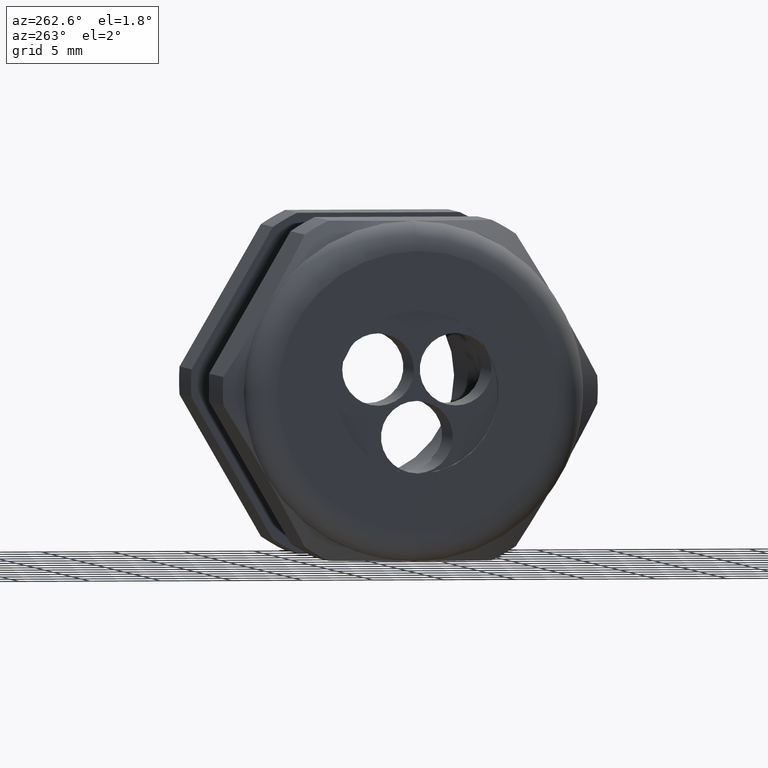
[diagram: clean part render]
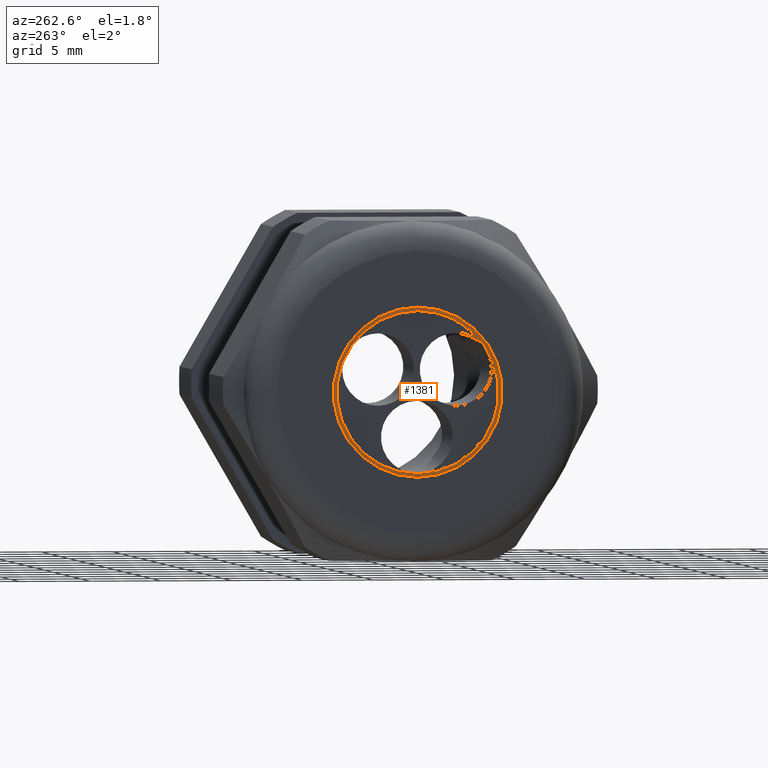
[diagram: same view with one face highlighted and labeled with its STEP entity id]
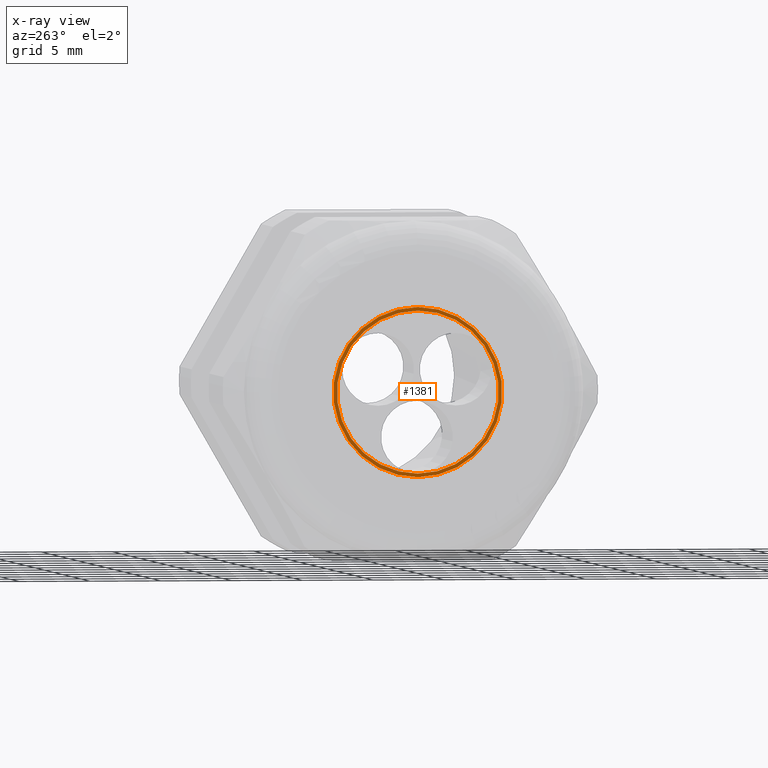
[diagram: x-ray of the same camera — body ghosted, the highlighted face saturated]
A machine part, auxiliary view. The second image highlights one B-rep face of the part: STEP entity #1381.
The next image is the same camera in x-ray: the body ghosted, the highlighted face saturated — about 0% of this face is hidden behind the body in this view.
In plain terms, the highlighted planar face has unit normal (-1, 0, 0).
Its self-contained STEP definition (entity closure, byte-faithful):
#1215 = ORIENTED_EDGE ( 'NONE', *, *, #1436, .F. ) ;
#1219 = EDGE_LOOP ( 'NONE', ( #1220, #1292 ) ) ;
#1220 = ORIENTED_EDGE ( 'NONE', *, *, #1490, .T. ) ;
#1292 = ORIENTED_EDGE ( 'NONE', *, *, #1421, .T. ) ;
#1381 = ADVANCED_FACE ( 'NONE', ( #4335, #4334 ), #4340, .T. ) ;
#1382 = EDGE_LOOP ( 'NONE', ( #1383, #1215 ) ) ;
#1383 = ORIENTED_EDGE ( 'NONE', *, *, #1384, .F. ) ;
#1384 = EDGE_CURVE ( 'NONE', #1437, #1434, #4329, .T. ) ;
#1411 = VERTEX_POINT ( 'NONE', #4347 ) ;
#1421 = EDGE_CURVE ( 'NONE', #1488, #1411, #4393, .T. ) ;
#1434 = VERTEX_POINT ( 'NONE', #4429 ) ;
#1436 = EDGE_CURVE ( 'NONE', #1434, #1437, #4428, .T. ) ;
#1437 = VERTEX_POINT ( 'NONE', #4423 ) ;
#1488 = VERTEX_POINT ( 'NONE', #4515 ) ;
#1490 = EDGE_CURVE ( 'NONE', #1411, #1488, #4513, .T. ) ;
#4325 = DIRECTION ( 'NONE',  ( 0.0000000000000000000, 0.0000000000000000000, 1.000000000000000000 ) ) ;
#4326 = DIRECTION ( 'NONE',  ( -1.000000000000000000, 0.0000000000000000000, 0.0000000000000000000 ) ) ;
#4327 = CARTESIAN_POINT ( 'NONE',  ( -1.409999999999999900, 0.0000000000000000000, 0.0000000000000000000 ) ) ;
#4328 = AXIS2_PLACEMENT_3D ( 'NONE', #4327, #4326, #4325 ) ;
#4329 = CIRCLE ( 'NONE', #4328, 0.2249999999999999800 ) ;
#4330 = DIRECTION ( 'NONE',  ( 0.0000000000000000000, 0.0000000000000000000, 1.000000000000000000 ) ) ;
#4331 = DIRECTION ( 'NONE',  ( -1.000000000000000000, 0.0000000000000000000, 0.0000000000000000000 ) ) ;
#4332 = CARTESIAN_POINT ( 'NONE',  ( -1.409999999999999900, 0.0000000000000000000, 0.0000000000000000000 ) ) ;
#4333 = AXIS2_PLACEMENT_3D ( 'NONE', #4332, #4331, #4330 ) ;
#4334 = FACE_OUTER_BOUND ( 'NONE', #1219, .T. ) ;
#4335 = FACE_BOUND ( 'NONE', #1382, .T. ) ;
#4340 = PLANE ( 'NONE',  #4333 ) ;
#4347 = CARTESIAN_POINT ( 'NONE',  ( -1.409999999999999900, 0.0000000000000000000, 0.2349999999999999900 ) ) ;
#4389 = DIRECTION ( 'NONE',  ( 0.0000000000000000000, 0.0000000000000000000, 1.000000000000000000 ) ) ;
#4390 = DIRECTION ( 'NONE',  ( -1.000000000000000000, 0.0000000000000000000, 0.0000000000000000000 ) ) ;
#4391 = CARTESIAN_POINT ( 'NONE',  ( -1.409999999999999900, 0.0000000000000000000, 0.0000000000000000000 ) ) ;
#4392 = AXIS2_PLACEMENT_3D ( 'NONE', #4391, #4390, #4389 ) ;
#4393 = CIRCLE ( 'NONE', #4392, 0.2349999999999999900 ) ;
#4423 = CARTESIAN_POINT ( 'NONE',  ( -1.409999999999999900, 0.0000000000000000000, 0.2249999999999999800 ) ) ;
#4424 = DIRECTION ( 'NONE',  ( 0.0000000000000000000, 0.0000000000000000000, 1.000000000000000000 ) ) ;
#4425 = DIRECTION ( 'NONE',  ( -1.000000000000000000, 0.0000000000000000000, 0.0000000000000000000 ) ) ;
#4426 = CARTESIAN_POINT ( 'NONE',  ( -1.409999999999999900, 0.0000000000000000000, 0.0000000000000000000 ) ) ;
#4427 = AXIS2_PLACEMENT_3D ( 'NONE', #4426, #4425, #4424 ) ;
#4428 = CIRCLE ( 'NONE', #4427, 0.2249999999999999800 ) ;
#4429 = CARTESIAN_POINT ( 'NONE',  ( -1.409999999999999900, 2.755455298081544500E-017, -0.2249999999999999800 ) ) ;
#4509 = DIRECTION ( 'NONE',  ( 0.0000000000000000000, 0.0000000000000000000, 1.000000000000000000 ) ) ;
#4510 = DIRECTION ( 'NONE',  ( -1.000000000000000000, 0.0000000000000000000, 0.0000000000000000000 ) ) ;
#4511 = CARTESIAN_POINT ( 'NONE',  ( -1.409999999999999900, 0.0000000000000000000, 0.0000000000000000000 ) ) ;
#4512 = AXIS2_PLACEMENT_3D ( 'NONE', #4511, #4510, #4509 ) ;
#4513 = CIRCLE ( 'NONE', #4512, 0.2349999999999999900 ) ;
#4515 = CARTESIAN_POINT ( 'NONE',  ( -1.409999999999999900, 2.877919977996279800E-017, -0.2349999999999999900 ) ) ;